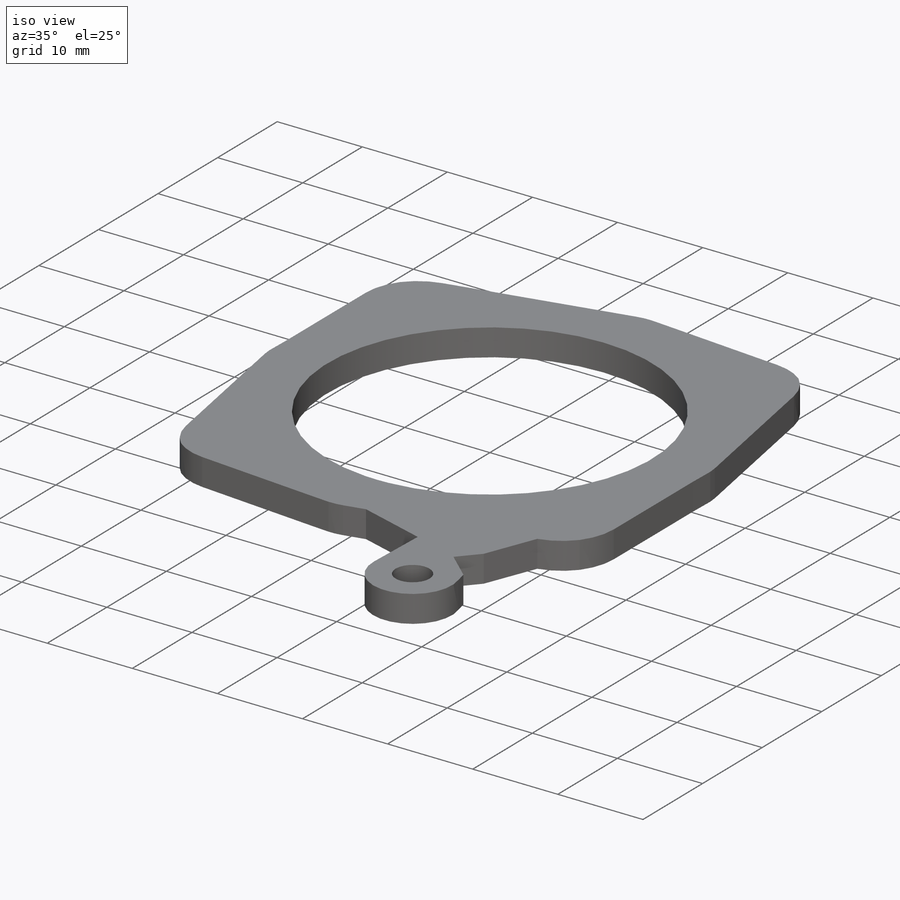
[diagram: iso view]
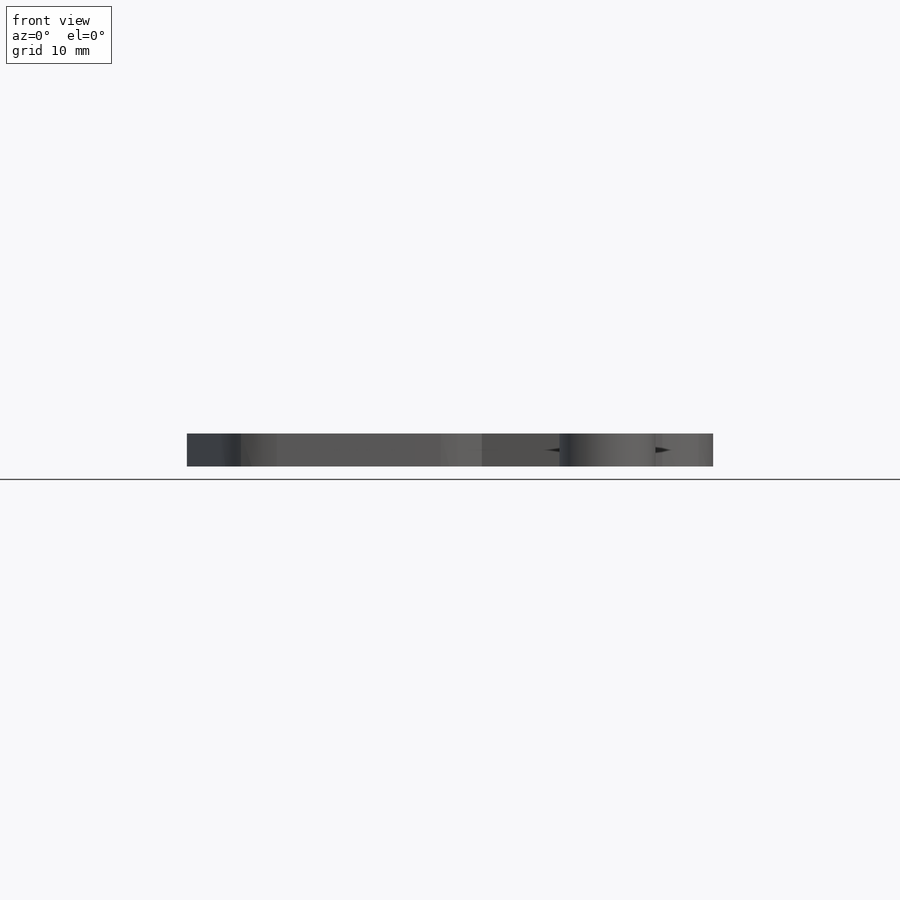
[diagram: front view]
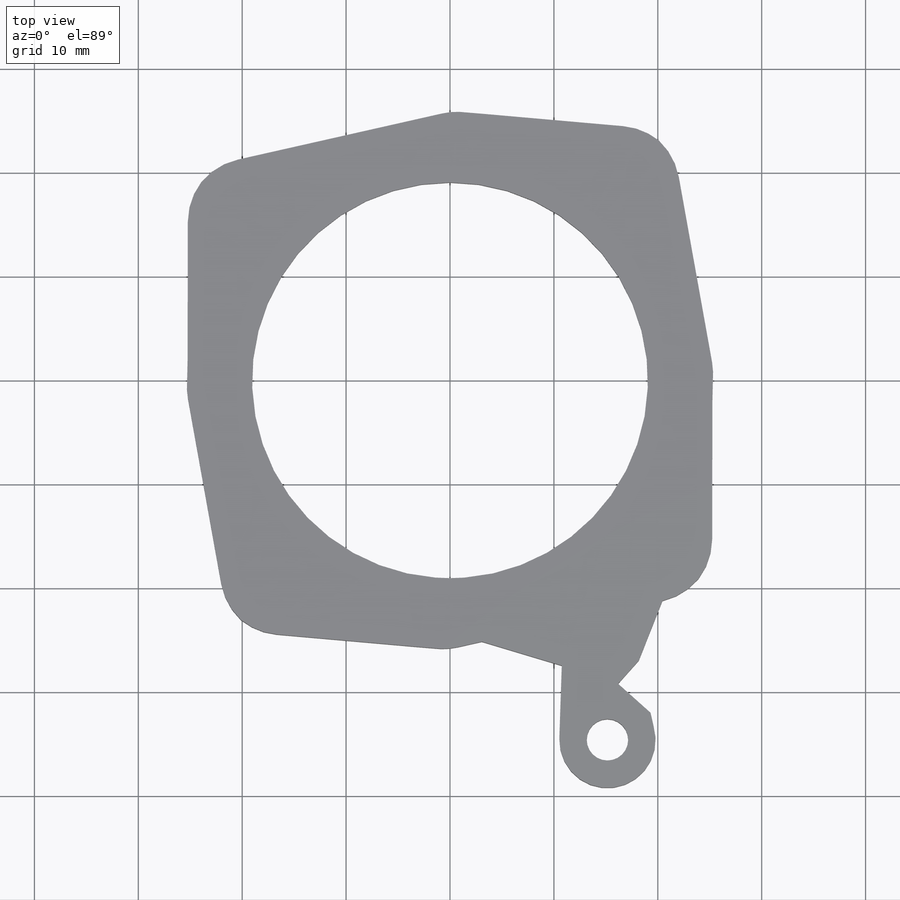
[diagram: top view]
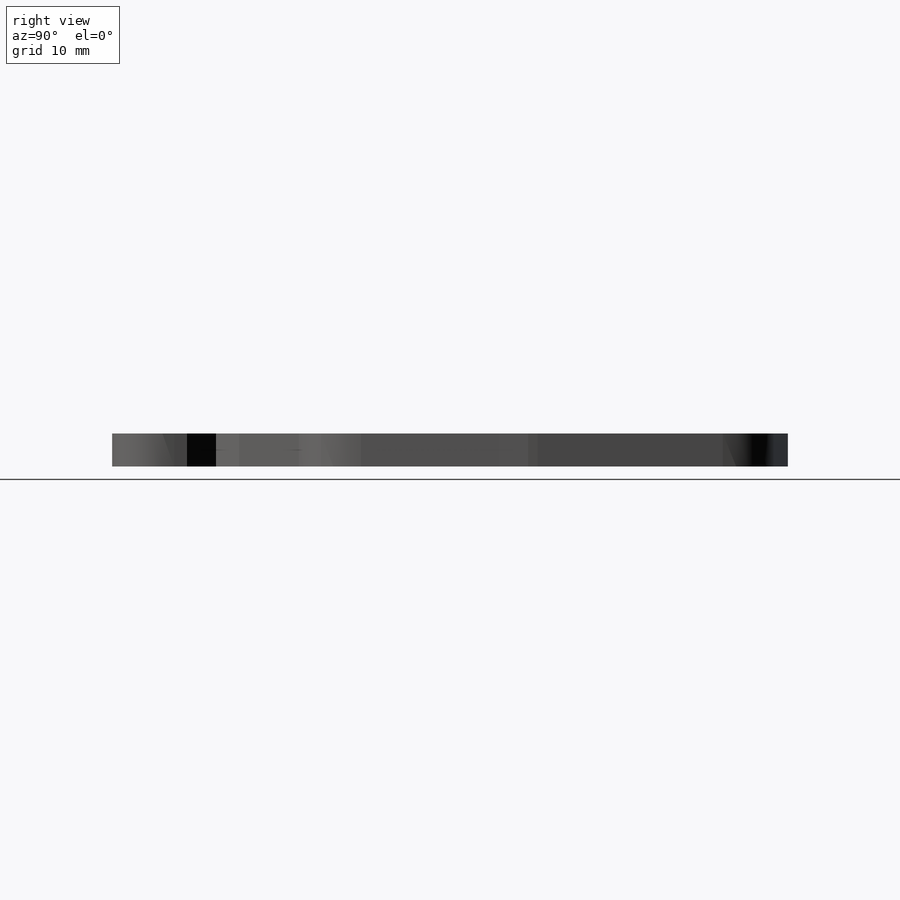
[diagram: right view]
SOLIDWORKS PART (.sldprt)
format: sldprt  version: not decoded by parser v0  size: 329,728 bytes
history: native  units: mm
features: sketch x3, extrude x2, material x1, fillet x1 (+12 scaffold rows collapsed)
feature tree (19):
  scaffold x12  (default folders/planes/origin — collapsed)
  material  "Material <not specified>"
  sketch  "Sketch1"  dims[c1.D1=50.8mm c1.D2=57.15mm c1.D8=38.1mm c2.D1=25.4mm c2.D9=~30.099007mm c2.D2=3.175mm c2.D3=28.575mm c3.D3=45.0deg c3.D2=4.7625mm c3.D4=28.575mm c4.D4=45.0deg c4.D5=~24.077909mm c4.D6=25.4mm c4.D1=6.8072mm c4.D9=~0.823321mm c4.D10=87.0deg c4.D11=25.3365mm c5.D10=25.3365mm c5.D11=~15.067194mm c5.D5=15.0deg c5.D6=15.0deg c5.D7=4.0 c5.D9=2.0]
  extrude  "Boss-Extrude1"  Depth=3.175mm
  fillet  "Fillet1"  Radius=6.35mm
  sketch  "Sketch3"  dims[c1.D2=1.1684mm c1.D3=~2.843496mm c1.D1=1.143mm c2.D2=1.143mm c2.D3=20.574mm c2.D5=3.1115mm c2.D6=~6.832666mm c2.D8=6.35mm c2.D1=~37.041104mm c3.D1=22.5deg c4.D1=~11.546452mm c5.D1=5.5deg c6.D1=~25.52192mm c6.D3=1.5875mm c7.D1=25.527mm c7.D2=1.5875mm c8.D1=65.405mm c8.D2=~8.64362mm c9.D1=~8.64362mm c9.D2=65.405mm c9.D4=44.45mm c9.D5=~25.119743mm c10.D5=45.0deg c10.D6=3.175mm c10.D7=~25.119743mm c11.D7=45.0deg c12.D7=40.64mm]
  sketch  "Sketch4"  dims[c1.D1=75.565mm c1.D4=3.9878mm c1.D5=9.271mm c2.D1=~1.291972mm c2.D2=~61.352873mm c3.D2=45.0deg c3.D3=25.4mm c3.D6=~25.119743mm c4.D6=31.15deg c4.D2=10.6807mm c4.D3=10.6807mm c4.D7=6.985mm c4.D8=~3.804286mm c5.D8=35.52deg c5.D9=4.191mm c5.D10=~2.830089mm c5.D11=~3.534235mm]
  extrude  "Boss-Extrude2"  [1 undecoded]
decode coverage: 5 of 6 modeling features carry decoded parameters
note: ~ marks probable driven/reference dimensions
note: 1 parameter value undecoded
note: suppression state not decoded; provenance and decode notes live in map.json
